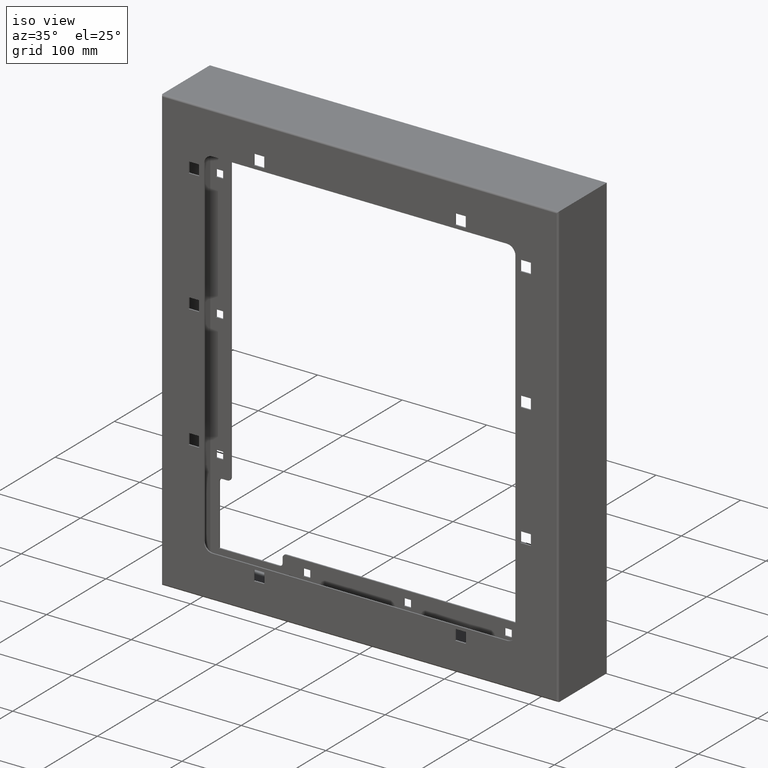
[diagram: clean part render]
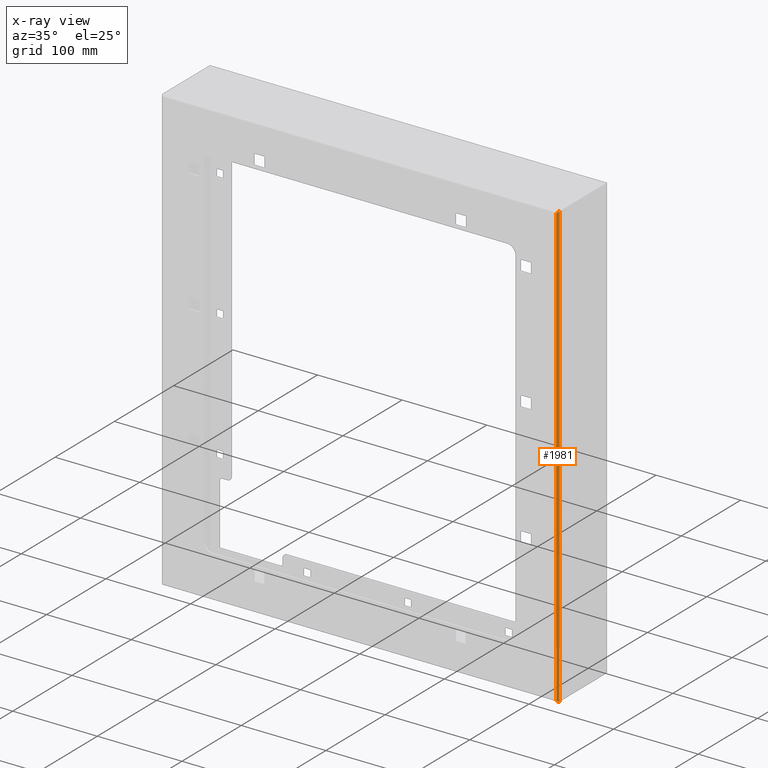
[diagram: x-ray — body ghosted, one internal face saturated and labeled with its STEP entity id]
A machine part, iso view, then the same camera in x-ray: the body is ghosted and one INTERNAL B-rep face — a face not visible from any outside direction — is saturated and labeled: STEP entity #1981.
In plain terms, the highlighted cylindrical surface (edge-blend (fillet) strip) has radius 2 mm, axis along (0, 0, 1).
Its self-contained STEP definition (entity closure, byte-faithful):
#12 = CARTESIAN_POINT ( 'NONE',  ( 234.5000000000000300, 1.999999999999988000, 262.0000000000000000 ) ) ;
#129 = CARTESIAN_POINT ( 'NONE',  ( 234.5000000000000000, 1.999999999999988000, -262.0000000000000000 ) ) ;
#518 = VERTEX_POINT ( 'NONE', #129 ) ;
#521 = VERTEX_POINT ( 'NONE', #12 ) ;
#554 = CARTESIAN_POINT ( 'NONE',  ( 234.5000000000000000, 2.000000000000001800, -262.0000000000000000 ) ) ;
#555 = DIRECTION ( 'NONE',  ( -1.059373115100340100E-016, 0.0000000000000000000, -1.000000000000000000 ) ) ;
#767 = CARTESIAN_POINT ( 'NONE',  ( 232.5000000000000300, 0.0000000000000000000, 262.0000000000000000 ) ) ;
#769 = DIRECTION ( 'NONE',  ( 1.059373115100340100E-016, -0.0000000000000000000, 1.000000000000000000 ) ) ;
#1430 = DIRECTION ( 'NONE',  ( 1.000000000000000000, 0.0000000000000000000, 0.0000000000000000000 ) ) ;
#1431 = CARTESIAN_POINT ( 'NONE',  ( 232.5000000000000300, 2.000000000000001800, 262.0000000000000000 ) ) ;
#1432 = DIRECTION ( 'NONE',  ( 1.059373115100340100E-016, 0.0000000000000000000, 1.000000000000000000 ) ) ;
#1670 = AXIS2_PLACEMENT_3D ( 'NONE', #1431, #1432, #1430 ) ;
#1981 = ADVANCED_FACE ( 'NONE', ( #3844 ), #3849, .T. ) ;
#2665 = CARTESIAN_POINT ( 'NONE',  ( 232.5000000000000300, 0.0000000000000000000, 260.0000000000000000 ) ) ;
#2668 = CARTESIAN_POINT ( 'NONE',  ( 232.4999999999999700, 0.0000000000000000000, -260.0000000000000000 ) ) ;
#2738 = CARTESIAN_POINT ( 'NONE',  ( 232.4999999999999700, 0.0000000000000000000, -260.0000000000000000 ) ) ;
#2742 = CARTESIAN_POINT ( 'NONE',  ( 233.6715728752538200, 1.953189899223894300E-015, -261.1715728752538400 ) ) ;
#2831 = CARTESIAN_POINT ( 'NONE',  ( 234.5000000000000300, 0.8284271247461844100, -262.0000000000000000 ) ) ;
#2832 = CARTESIAN_POINT ( 'NONE',  ( 234.5000000000000000, 1.999999999999988000, -262.0000000000000000 ) ) ;
#2833 = CARTESIAN_POINT ( 'NONE',  ( 232.5000000000000300, 0.0000000000000000000, 260.0000000000000000 ) ) ;
#2834 = CARTESIAN_POINT ( 'NONE',  ( 233.6715728752538400, 1.953189899223894300E-015, 261.1715728752538400 ) ) ;
#2842 = CARTESIAN_POINT ( 'NONE',  ( 234.5000000000000300, 0.8284271247461844100, 262.0000000000000000 ) ) ;
#2843 = CARTESIAN_POINT ( 'NONE',  ( 234.5000000000000300, 1.999999999999988000, 262.0000000000000000 ) ) ;
#2918 =( BOUNDED_CURVE ( )  B_SPLINE_CURVE ( 3, ( #2833, #2834, #2842, #2843 ),
 .UNSPECIFIED., .F., .T. ) 
 B_SPLINE_CURVE_WITH_KNOTS ( ( 4, 4 ),
 ( 4.712388980384689700, 6.283185307179579100 ),
 .UNSPECIFIED. ) 
 CURVE ( )  GEOMETRIC_REPRESENTATION_ITEM ( )  RATIONAL_B_SPLINE_CURVE ( ( 1.000000000000000000, 0.8047378541243667100, 0.8047378541243667100, 1.000000000000000000 ) ) 
 REPRESENTATION_ITEM ( '' )  );
#2921 =( BOUNDED_CURVE ( )  B_SPLINE_CURVE ( 3, ( #2738, #2742, #2831, #2832 ),
 .UNSPECIFIED., .F., .T. ) 
 B_SPLINE_CURVE_WITH_KNOTS ( ( 4, 4 ),
 ( 4.712388980384689700, 6.283185307179579100 ),
 .UNSPECIFIED. ) 
 CURVE ( )  GEOMETRIC_REPRESENTATION_ITEM ( )  RATIONAL_B_SPLINE_CURVE ( ( 1.000000000000000000, 0.8047378541243667100, 0.8047378541243667100, 1.000000000000000000 ) ) 
 REPRESENTATION_ITEM ( '' )  );
#2962 = EDGE_CURVE ( 'NONE', #521, #518, #3436, .T. ) ;
#3053 = LINE ( 'NONE', #767, #3056 ) ;
#3056 = VECTOR ( 'NONE', #769, 1000.000000000000000 ) ;
#3436 = LINE ( 'NONE', #554, #3439 ) ;
#3439 = VECTOR ( 'NONE', #555, 1000.000000000000000 ) ;
#3844 = FACE_OUTER_BOUND ( 'NONE', #3931, .T. ) ;
#3849 = CYLINDRICAL_SURFACE ( 'NONE', #1670, 2.000000000000001800 ) ;
#3931 = EDGE_LOOP ( 'NONE', ( #4576, #4577, #4578, #4579 ) ) ;
#4050 = EDGE_CURVE ( 'NONE', #4222, #4223, #3053, .T. ) ;
#4222 = VERTEX_POINT ( 'NONE', #2668 ) ;
#4223 = VERTEX_POINT ( 'NONE', #2665 ) ;
#4338 = EDGE_CURVE ( 'NONE', #4222, #518, #2921, .T. ) ;
#4341 = EDGE_CURVE ( 'NONE', #4223, #521, #2918, .T. ) ;
#4576 = ORIENTED_EDGE ( 'NONE', *, *, #4338, .T. ) ;
#4577 = ORIENTED_EDGE ( 'NONE', *, *, #2962, .F. ) ;
#4578 = ORIENTED_EDGE ( 'NONE', *, *, #4341, .F. ) ;
#4579 = ORIENTED_EDGE ( 'NONE', *, *, #4050, .F. ) ;